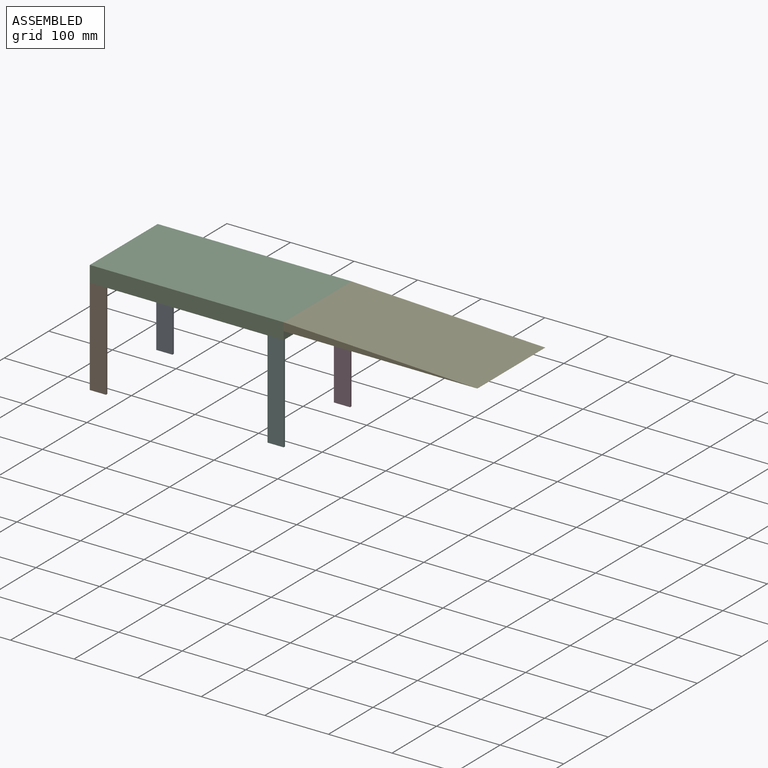
[diagram: assembled view]
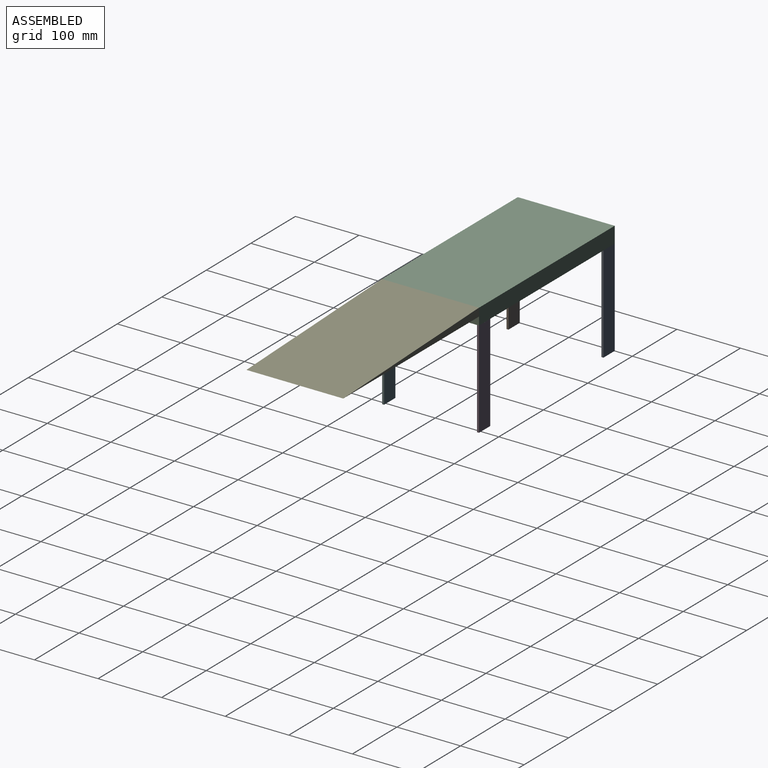
[diagram: assembled view, second angle]
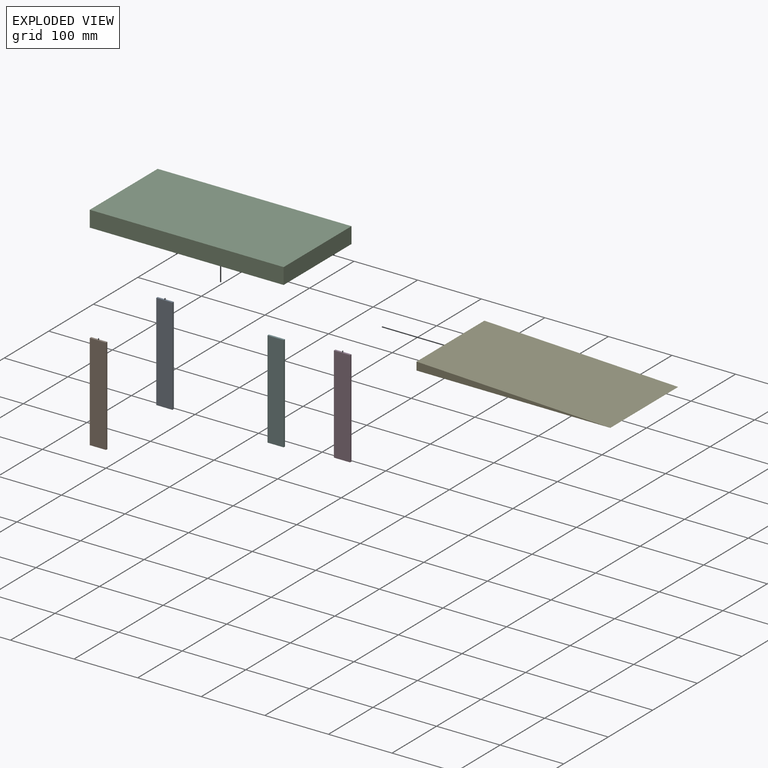
[diagram: exploded view]
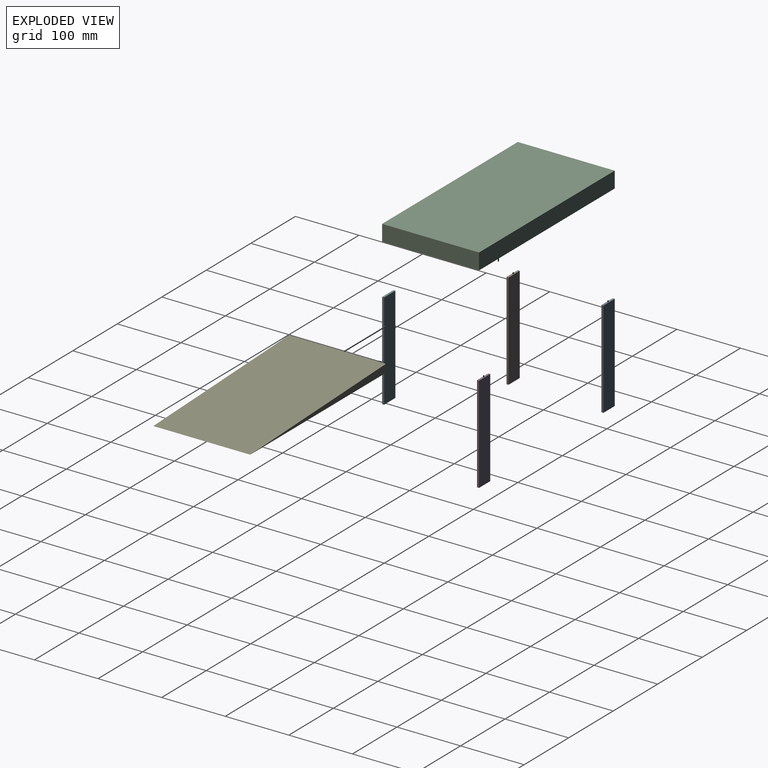
[diagram: exploded view, second angle]
ASSEMBLY  parts=6 mates=5
PART A: 6 faces, bbox 25.4x3.2x152.4 mm
  f0: plane 25.4x3.18mm, normal (0,0,1), area 80.6mm2, adj f1,f3,f4,f5
  f1: plane 152.4x3.18mm, normal (-1,0,0), area 483.9mm2, adj f0,f2,f4,f5
  f2: plane 25.4x3.18mm, normal (0,0,-1), area 80.6mm2, adj f1,f3,f4,f5
  f3: plane 152.4x3.18mm, normal (1,0,0), area 483.9mm2, adj f0,f2,f4,f5
  f4: plane 152.4x25.4mm, normal (0,1,0), area 3871mm2, adj f0,f1,f2,f3
  f5: plane 152.4x25.4mm, normal (0,-1,0), area 3871mm2, adj f0,f1,f2,f3
PART B: same geometry as A
PART C: 6 faces, bbox 304.8x152.4x25.4 mm
  f0: plane 304.8x25.4mm, normal (0,1,0), area 7741.9mm2, adj f1,f3,f4,f5
  f1: plane 152.4x25.4mm, normal (-1,0,0), area 3871mm2, adj f0,f2,f4,f5
  f2: plane 304.8x25.4mm, normal (0,-1,0), area 7741.9mm2, adj f1,f3,f4,f5
  f3: plane 152.4x25.4mm, normal (1,0,0), area 3871mm2, adj f0,f2,f4,f5
  f4: plane 304.8x152.4mm, normal (0,0,-1), area 46451.5mm2, adj f0,f1,f2,f3
  f5: plane 304.8x152.4mm, normal (0,0,1), area 46451.5mm2, adj f0,f1,f2,f3
PART D: same geometry as A
PART E: 5 faces, bbox 304.8x12.7x152.4 mm
  f0: plane 304.8x12.7mm, normal (0,0,1), area 1935.5mm2, adj f1,f3,f4
  f1: plane 152.4x12.7mm, normal (-1,0,0), area 1935.5mm2, adj f0,f2,f3,f4
  f2: plane 304.8x12.7mm, normal (0,0,-1), area 1935.5mm2, adj f1,f3,f4
  f3: plane 304.8x152.4mm, normal (0,1,0), area 46451.5mm2, adj f0,f1,f2,f4
  f4: plane 304.8x152.4mm, normal (0.04,-1,0), area 46491.8mm2, adj f0,f1,f2,f3
PART F: same geometry as A
PLACE A t=(-319.76,-22.5,-344.67)mm
PLACE B t=(-319.76,-171.72,-344.67)mm
PLACE C t=(-192.76,-95.52,-242.16)mm
PLACE D t=(-40.36,-22.5,-344.67)mm
PLACE E rot(axis=(-1,0,0),90deg) t=(112.04,-95.52,-242.16)mm
PLACE F t=(-40.36,-171.72,-344.67)mm
MATE fastened C.f4 <-> B.f0  axis (0,0,-1) through (-345.16,-171.72,-267.56)mm
MATE fastened E.f1 <-> C.f3  axis (-1,0,0) through (-40.36,-95.52,-248.51)mm
MATE fastened C.f4 <-> F.f0  axis (0,0,-1) through (-40.36,-171.72,-267.56)mm
MATE fastened C.f4 <-> D.f0  axis (0,0,-1) through (-40.36,-19.32,-267.56)mm
MATE fastened C.f4 <-> A.f0  axis (0,0,-1) through (-345.16,-19.32,-267.56)mm
